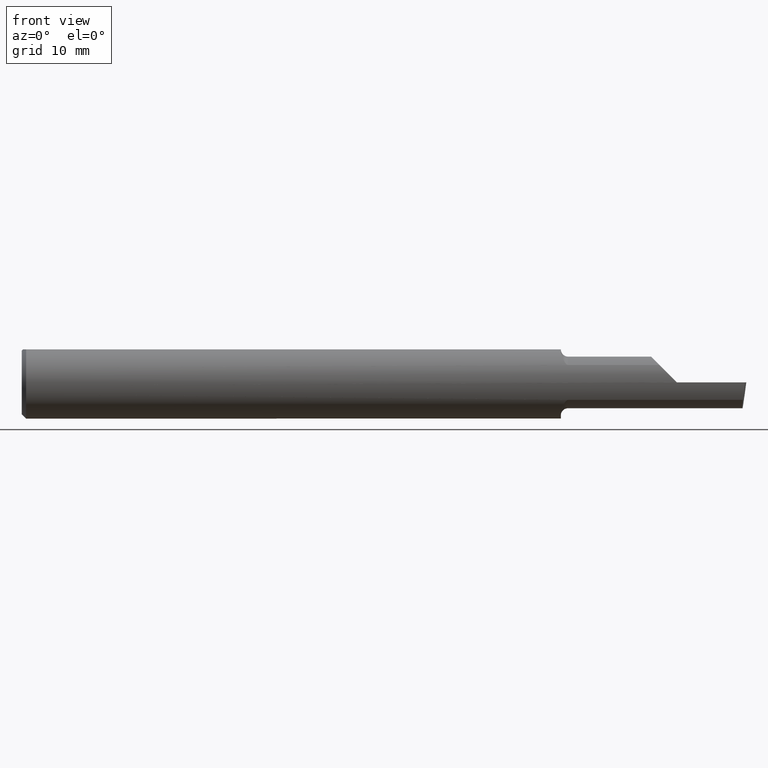
[diagram: clean part render]
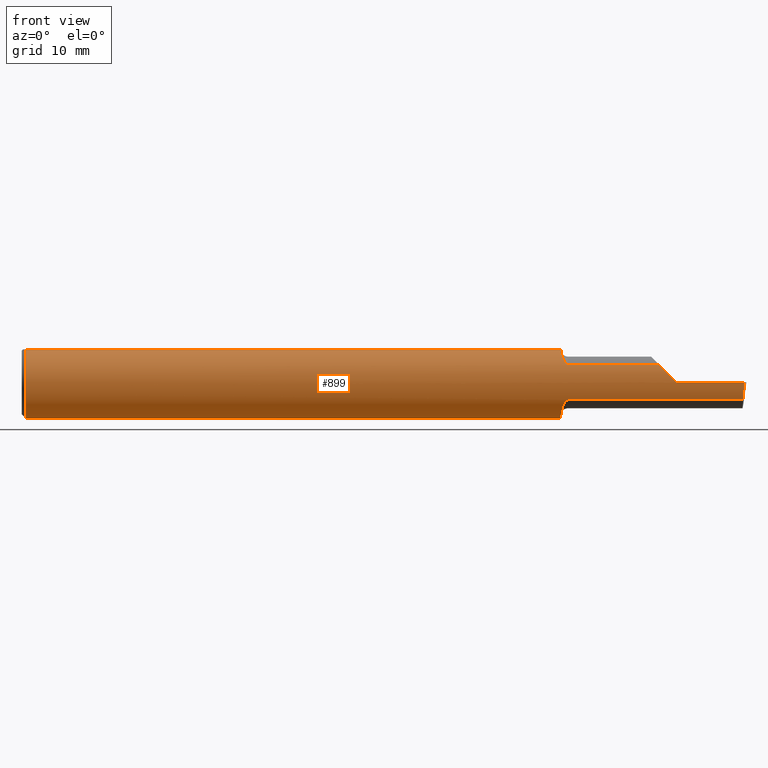
[diagram: same view with one face highlighted and labeled with its STEP entity id]
A machine part, front view. The second image highlights one B-rep face of the part: STEP entity #899.
In plain terms, the highlighted cylindrical surface (edge-blend (fillet) strip) has radius 3.1712 mm, axis along (-1, -0, -0).
Its self-contained STEP definition (entity closure, byte-faithful):
#14 = EDGE_CURVE ( 'NONE', #390, #813, #377, .T. ) ;
#15 = CARTESIAN_POINT ( 'NONE',  ( 1.874283923201366830, -0.1046119976162258325, -0.06821230220210329487 ) ) ;
#36 = ORIENTED_EDGE ( 'NONE', *, *, #554, .F. ) ;
#41 = AXIS2_PLACEMENT_3D ( 'NONE', #1114, #195, #919 ) ;
#47 = VECTOR ( 'NONE', #155, 39.37007874015748143 ) ;
#67 = DIRECTION ( 'NONE',  ( 0.000000000000000000, 0.000000000000000000, -1.000000000000000000 ) ) ;
#68 = CARTESIAN_POINT ( 'NONE',  ( 0.01499999999999915637, 0.000000000000000000, 0.000000000000000000 ) ) ;
#87 = CARTESIAN_POINT ( 'NONE',  ( 0.01499999999999915637, 0.000000000000000000, -0.1248500000000000026 ) ) ;
#94 = EDGE_CURVE ( 'NONE', #576, #1308, #1212, .T. ) ;
#96 = CARTESIAN_POINT ( 'NONE',  ( 2.260000000000000231, 0.000000000000000000, 0.000000000000000000 ) ) ;
#97 = CARTESIAN_POINT ( 'NONE',  ( 2.075000000000000178, -0.1093425883694413014, 0.06026376082415467461 ) ) ;
#105 = EDGE_CURVE ( 'NONE', #1283, #272, #695, .T. ) ;
#114 = CARTESIAN_POINT ( 'NONE',  ( 1.885000000000000009, -0.1093425883694413014, -0.06026376082415467461 ) ) ;
#127 = CARTESIAN_POINT ( 'NONE',  ( 1.885000000000000009, -0.1093425883694413014, 0.06026376082415467461 ) ) ;
#130 = CARTESIAN_POINT ( 'NONE',  ( 2.500000000000000000, -0.05124158467494927677, 0.1138500000000000068 ) ) ;
#153 = FACE_OUTER_BOUND ( 'NONE', #1145, .T. ) ;
#155 = DIRECTION ( 'NONE',  ( -1.000000000000000000, -0.000000000000000000, -0.000000000000000000 ) ) ;
#156 = CARTESIAN_POINT ( 'NONE',  ( 2.218537028253239285, -0.1195116721323033065, 0.04181297174676079642 ) ) ;
#157 = ORIENTED_EDGE ( 'NONE', *, *, #623, .T. ) ;
#159 = DIRECTION ( 'NONE',  ( -1.000000000000000000, -0.000000000000000000, -0.000000000000000000 ) ) ;
#195 = DIRECTION ( 'NONE',  ( 1.000000000000000000, 0.000000000000000000, 0.000000000000000000 ) ) ;
#216 = CARTESIAN_POINT ( 'NONE',  ( 1.860000000000000098, 0.000000000000000000, 0.000000000000000000 ) ) ;
#224 = DIRECTION ( 'NONE',  ( -1.000000000000000000, -0.000000000000000000, -0.000000000000000000 ) ) ;
#228 = CARTESIAN_POINT ( 'NONE',  ( 1.860000000000000098, -0.05147485746864310929, 0.1137447209701746148 ) ) ;
#243 = CARTESIAN_POINT ( 'NONE',  ( 1.868415758364237345, -0.09681973434311111348, 0.07911054902715596027 ) ) ;
#258 = CARTESIAN_POINT ( 'NONE',  ( 0.01499999999999915637, 0.000000000000000000, 0.000000000000000000 ) ) ;
#261 = CARTESIAN_POINT ( 'NONE',  ( 2.500000000000000000, 0.000000000000000000, 0.000000000000000000 ) ) ;
#265 = DIRECTION ( 'NONE',  ( 1.000000000000000000, -0.000000000000000000, -0.000000000000000000 ) ) ;
#272 = VERTEX_POINT ( 'NONE', #87 ) ;
#277 = AXIS2_PLACEMENT_3D ( 'NONE', #68, #760, #975 ) ;
#302 = DIRECTION ( 'NONE',  ( -1.000000000000000000, -0.000000000000000000, -0.000000000000000000 ) ) ;
#310 = CARTESIAN_POINT ( 'NONE',  ( 2.487785916505024453, -0.1093425883694412876, -0.06026376082415470931 ) ) ;
#312 = EDGE_CURVE ( 'NONE', #876, #813, #613, .T. ) ;
#313 = ORIENTED_EDGE ( 'NONE', *, *, #94, .T. ) ;
#330 = CARTESIAN_POINT ( 'NONE',  ( 1.878582821436011185, -0.1077233320814302564, -0.06312374966870225312 ) ) ;
#346 = VECTOR ( 'NONE', #1281, 39.37007874015748143 ) ;
#363 = AXIS2_PLACEMENT_3D ( 'NONE', #216, #617, #1199 ) ;
#377 = LINE ( 'NONE', #1075, #346 ) ;
#390 = VERTEX_POINT ( 'NONE', #637 ) ;
#412 = LINE ( 'NONE', #97, #717 ) ;
#413 = ORIENTED_EDGE ( 'NONE', *, *, #759, .T. ) ;
#415 = VERTEX_POINT ( 'NONE', #831 ) ;
#421 = CARTESIAN_POINT ( 'NONE',  ( 1.860388743662555244, -0.06447589190997096709, -0.1071553580159688435 ) ) ;
#432 = ORIENTED_EDGE ( 'NONE', *, *, #877, .T. ) ;
#442 = EDGE_CURVE ( 'NONE', #601, #1283, #1242, .T. ) ;
#448 = CARTESIAN_POINT ( 'NONE',  ( 1.868371954461044426, -0.09675137270842944226, -0.07920056856679652535 ) ) ;
#449 = B_SPLINE_CURVE_WITH_KNOTS ( 'NONE', 3,
 ( #127, #1066, #1265, #728, #1274, #828, #836, #243, #533, #968, #1059, #228 ),
 .UNSPECIFIED., .F., .F.,
 ( 4, 2, 2, 2, 2, 4 ),
 ( 0.000000000000000000, 0.0001399554655829059798, 0.0002799109311658119596, 0.0005598218623316243529, 0.001119643724663256295, 0.002239287449326519963 ),
 .UNSPECIFIED. ) ;
#462 = CIRCLE ( 'NONE', #41, 0.1248500000000000026 ) ;
#467 = ORIENTED_EDGE ( 'NONE', *, *, #105, .T. ) ;
#472 = DIRECTION ( 'NONE',  ( 0.000000000000000000, 0.000000000000000000, 1.000000000000000000 ) ) ;
#476 = ORIENTED_EDGE ( 'NONE', *, *, #1257, .F. ) ;
#477 = CYLINDRICAL_SURFACE ( 'NONE', #1323, 0.1248500000000000026 ) ;
#495 = VERTEX_POINT ( 'NONE', #1061 ) ;
#504 = VERTEX_POINT ( 'NONE', #956 ) ;
#515 = CARTESIAN_POINT ( 'NONE',  ( 1.860000000000000098, -0.05124158467494927677, 0.1138500000000000068 ) ) ;
#533 = CARTESIAN_POINT ( 'NONE',  ( 1.866359086621634411, -0.09217855052086351697, 0.08450162317811935053 ) ) ;
#534 = ORIENTED_EDGE ( 'NONE', *, *, #312, .F. ) ;
#535 = DIRECTION ( 'NONE',  ( -1.000000000000000000, -0.000000000000000000, -0.000000000000000000 ) ) ;
#541 = CARTESIAN_POINT ( 'NONE',  ( 1.866361277442388555, -0.09219001326833792254, -0.08449244930902043149 ) ) ;
#554 = EDGE_CURVE ( 'NONE', #1217, #1308, #412, .T. ) ;
#556 = CARTESIAN_POINT ( 'NONE',  ( 2.494776250492609648, -0.1248499999999999610, -1.707404996040164512E-17 ) ) ;
#576 = VERTEX_POINT ( 'NONE', #1128 ) ;
#591 = CARTESIAN_POINT ( 'NONE',  ( 2.492174692773018396, -0.1248499999999999888, -0.02118798732072203414 ) ) ;
#593 = EDGE_CURVE ( 'NONE', #415, #1198, #689, .T. ) ;
#601 = VERTEX_POINT ( 'NONE', #515 ) ;
#606 = CARTESIAN_POINT ( 'NONE',  ( 2.494776250492609648, -0.1248499999999999610, -1.707404996040164512E-17 ) ) ;
#613 = CIRCLE ( 'NONE', #363, 0.1248500000000000026 ) ;
#617 = DIRECTION ( 'NONE',  ( 1.000000000000000000, 0.000000000000000000, 0.000000000000000000 ) ) ;
#623 = EDGE_CURVE ( 'NONE', #1198, #504, #718, .T. ) ;
#626 = CARTESIAN_POINT ( 'NONE',  ( 1.861938239095210390, -0.07637198179816161170, -0.09902894417965883711 ) ) ;
#637 = CARTESIAN_POINT ( 'NONE',  ( 0.01499999999999915637, 0.05124158467494929065, 0.1138500000000000068 ) ) ;
#645 = CARTESIAN_POINT ( 'NONE',  ( 1.860000000000000098, -0.05147485746864310929, -0.1137447209701746148 ) ) ;
#683 = VERTEX_POINT ( 'NONE', #1011 ) ;
#689 =( BOUNDED_CURVE ( )  B_SPLINE_CURVE ( 3, ( #310, #1035, #591, #606 ),
 .UNSPECIFIED., .F., .T. ) 
 B_SPLINE_CURVE_WITH_KNOTS ( ( 4, 4 ),
 ( 0.8554227114044697933, 1.359145557743775656 ),
 .UNSPECIFIED. ) 
 CURVE ( )  GEOMETRIC_REPRESENTATION_ITEM ( )  RATIONAL_B_SPLINE_CURVE ( ( 1.000000000000000000, 0.9789668132830409153, 0.9789668132830409153, 1.000000000000000000 ) ) 
 REPRESENTATION_ITEM ( '' )  );
#691 = CIRCLE ( 'NONE', #277, 0.1248500000000000026 ) ;
#695 = CIRCLE ( 'NONE', #939, 0.1248500000000000026 ) ;
#717 = VECTOR ( 'NONE', #814, 39.37007874015748143 ) ;
#718 = LINE ( 'NONE', #1137, #781 ) ;
#723 = CARTESIAN_POINT ( 'NONE',  ( 1.881405924813791319, -0.1089009754209322584, -0.06106964548229007472 ) ) ;
#728 = CARTESIAN_POINT ( 'NONE',  ( 1.878569800726603622, -0.1077176293511042937, 0.06313366163023678701 ) ) ;
#749 = B_SPLINE_CURVE_WITH_KNOTS ( 'NONE', 3,
 ( #645, #1062, #421, #626, #957, #541, #448, #1236, #15, #823, #330, #723, #1044, #114 ),
 .UNSPECIFIED., .F., .F.,
 ( 4, 2, 2, 2, 2, 2, 4 ),
 ( 0.000000000000000000, 0.0005517145261831978400, 0.001103429052366395680, 0.001655143578549593628, 0.001931000841641192060, 0.002068929473186997131, 0.002206858104732802636 ),
 .UNSPECIFIED. ) ;
#758 = CARTESIAN_POINT ( 'NONE',  ( 2.238932527582364607, -0.1247904493837344864, 0.02141747241763547471 ) ) ;
#759 = EDGE_CURVE ( 'NONE', #1217, #683, #449, .T. ) ;
#760 = DIRECTION ( 'NONE',  ( 1.000000000000000000, -0.000000000000000000, -0.000000000000000000 ) ) ;
#767 = ORIENTED_EDGE ( 'NONE', *, *, #1064, .F. ) ;
#781 = VECTOR ( 'NONE', #224, 39.37007874015748143 ) ;
#790 = ORIENTED_EDGE ( 'NONE', *, *, #1092, .T. ) ;
#796 = ORIENTED_EDGE ( 'NONE', *, *, #986, .T. ) ;
#813 = VERTEX_POINT ( 'NONE', #948 ) ;
#814 = DIRECTION ( 'NONE',  ( 1.000000000000000000, 0.000000000000000000, 0.000000000000000000 ) ) ;
#820 = DIRECTION ( 'NONE',  ( 0.000000000000000000, 0.000000000000000000, 1.000000000000000000 ) ) ;
#823 = CARTESIAN_POINT ( 'NONE',  ( 1.877410496273541396, -0.1069869057687729552, -0.06437073033037425673 ) ) ;
#828 = CARTESIAN_POINT ( 'NONE',  ( 1.874262696791653138, -0.1045943557623048303, 0.06824036999240266910 ) ) ;
#829 = CARTESIAN_POINT ( 'NONE',  ( 2.200086239175845559, -0.1093425883694413153, 0.06026376082415463298 ) ) ;
#831 = CARTESIAN_POINT ( 'NONE',  ( 2.487785916505024453, -0.1093425883694412876, -0.06026376082415470931 ) ) ;
#836 = CARTESIAN_POINT ( 'NONE',  ( 1.872661867212401354, -0.1027603103061494466, 0.07098658663575842243 ) ) ;
#876 = VERTEX_POINT ( 'NONE', #989 ) ;
#877 = EDGE_CURVE ( 'NONE', #272, #390, #691, .T. ) ;
#899 = ADVANCED_FACE ( 'NONE', ( #153 ), #477, .T. ) ;
#906 = ORIENTED_EDGE ( 'NONE', *, *, #442, .T. ) ;
#917 = VECTOR ( 'NONE', #535, 39.37007874015748143 ) ;
#919 = DIRECTION ( 'NONE',  ( 0.000000000000000000, 0.000000000000000000, -1.000000000000000000 ) ) ;
#920 = AXIS2_PLACEMENT_3D ( 'NONE', #96, #302, #820 ) ;
#934 = CARTESIAN_POINT ( 'NONE',  ( 0.01499999999999915637, -0.05124158467494927677, 0.1138500000000000068 ) ) ;
#939 = AXIS2_PLACEMENT_3D ( 'NONE', #258, #265, #67 ) ;
#948 = CARTESIAN_POINT ( 'NONE',  ( 1.860000000000000098, 0.05124158467494929065, 0.1138500000000000068 ) ) ;
#956 = CARTESIAN_POINT ( 'NONE',  ( 2.260000000000000231, -0.1248499999999999610, -3.414809992080329023E-17 ) ) ;
#957 = CARTESIAN_POINT ( 'NONE',  ( 1.863114859723588257, -0.08201250590250441785, -0.09440297353497605071 ) ) ;
#968 = CARTESIAN_POINT ( 'NONE',  ( 1.861513270166815559, -0.07700069323836872259, 0.09928727876353371506 ) ) ;
#975 = DIRECTION ( 'NONE',  ( 0.000000000000000000, 0.000000000000000000, -1.000000000000000000 ) ) ;
#985 = CARTESIAN_POINT ( 'NONE',  ( 2.260000000000000231, -0.1248495094103296704, 0.0003499999999999383053 ) ) ;
#986 = EDGE_CURVE ( 'NONE', #504, #576, #1050, .T. ) ;
#989 = CARTESIAN_POINT ( 'NONE',  ( 1.860000000000000098, -0.05147485746864310929, -0.1137447209701746148 ) ) ;
#1003 = CARTESIAN_POINT ( 'NONE',  ( 1.885000000000000009, -0.1093425883694413014, 0.06026376082415467461 ) ) ;
#1011 = CARTESIAN_POINT ( 'NONE',  ( 1.860000000000000098, -0.05147485746864310929, 0.1137447209701746148 ) ) ;
#1035 = CARTESIAN_POINT ( 'NONE',  ( 2.489794518800235057, -0.1195698034294429557, -0.04170749830123407498 ) ) ;
#1044 = CARTESIAN_POINT ( 'NONE',  ( 1.883134955130017385, -0.1093425883694447709, -0.06026376082415150354 ) ) ;
#1050 = CIRCLE ( 'NONE', #920, 0.1248500000000000026 ) ;
#1059 = CARTESIAN_POINT ( 'NONE',  ( 1.860000000000000542, -0.06483863215424719162, 0.1076969818635403198 ) ) ;
#1061 = CARTESIAN_POINT ( 'NONE',  ( 1.885000000000000009, -0.1093425883694413014, -0.06026376082415467461 ) ) ;
#1062 = CARTESIAN_POINT ( 'NONE',  ( 1.860000000000000542, -0.05816623466208106080, -0.1107165568113169657 ) ) ;
#1064 = EDGE_CURVE ( 'NONE', #601, #683, #462, .T. ) ;
#1066 = CARTESIAN_POINT ( 'NONE',  ( 1.883123630933981163, -0.1093425883694413153, 0.06026376082415468155 ) ) ;
#1075 = CARTESIAN_POINT ( 'NONE',  ( 2.500000000000000000, 0.05124158467494929065, 0.1138500000000000068 ) ) ;
#1079 = CARTESIAN_POINT ( 'NONE',  ( 2.075000000000000178, -0.1093425883694413014, -0.06026376082415467461 ) ) ;
#1092 = EDGE_CURVE ( 'NONE', #876, #495, #749, .T. ) ;
#1114 = CARTESIAN_POINT ( 'NONE',  ( 1.860000000000000098, 0.000000000000000000, 0.000000000000000000 ) ) ;
#1128 = CARTESIAN_POINT ( 'NONE',  ( 2.260000000000000231, -0.1248495094103296704, 0.0003499999999999383053 ) ) ;
#1137 = CARTESIAN_POINT ( 'NONE',  ( 2.500000000000000000, -0.1248500000000000026, -3.414809992080329023E-17 ) ) ;
#1145 = EDGE_LOOP ( 'NONE', ( #476, #1296, #157, #796, #313, #36, #413, #767, #906, #467, #432, #1220, #534, #790 ) ) ;
#1174 = LINE ( 'NONE', #1079, #47 ) ;
#1175 = CARTESIAN_POINT ( 'NONE',  ( 2.200086239175845559, -0.1093425883694413153, 0.06026376082415463298 ) ) ;
#1198 = VERTEX_POINT ( 'NONE', #556 ) ;
#1199 = DIRECTION ( 'NONE',  ( 0.000000000000000000, 0.000000000000000000, -1.000000000000000000 ) ) ;
#1212 =( BOUNDED_CURVE ( )  B_SPLINE_CURVE ( 3, ( #985, #758, #156, #1175 ),
 .UNSPECIFIED., .F., .F. ) 
 B_SPLINE_CURVE_WITH_KNOTS ( ( 4, 4 ),
 ( 4.715192348093415475, 5.216111826723994760 ),
 .UNSPECIFIED. ) 
 CURVE ( )  GEOMETRIC_REPRESENTATION_ITEM ( )  RATIONAL_B_SPLINE_CURVE ( ( 1.000000000000000000, 0.9791990519953637229, 0.9791990519953637229, 1.000000000000000000 ) ) 
 REPRESENTATION_ITEM ( '' )  );
#1217 = VERTEX_POINT ( 'NONE', #1003 ) ;
#1220 = ORIENTED_EDGE ( 'NONE', *, *, #14, .T. ) ;
#1236 = CARTESIAN_POINT ( 'NONE',  ( 1.872660015980654347, -0.1027612295985233376, -0.07098704890307022675 ) ) ;
#1242 = LINE ( 'NONE', #130, #917 ) ;
#1257 = EDGE_CURVE ( 'NONE', #415, #495, #1174, .T. ) ;
#1265 = CARTESIAN_POINT ( 'NONE',  ( 1.881414604163055726, -0.1089048667610733045, 0.06106289298433214413 ) ) ;
#1274 = CARTESIAN_POINT ( 'NONE',  ( 1.877410591121773553, -0.1069877332768024020, 0.06436962514882092756 ) ) ;
#1281 = DIRECTION ( 'NONE',  ( 1.000000000000000000, 0.000000000000000000, 0.000000000000000000 ) ) ;
#1283 = VERTEX_POINT ( 'NONE', #934 ) ;
#1296 = ORIENTED_EDGE ( 'NONE', *, *, #593, .T. ) ;
#1308 = VERTEX_POINT ( 'NONE', #829 ) ;
#1323 = AXIS2_PLACEMENT_3D ( 'NONE', #261, #159, #472 ) ;